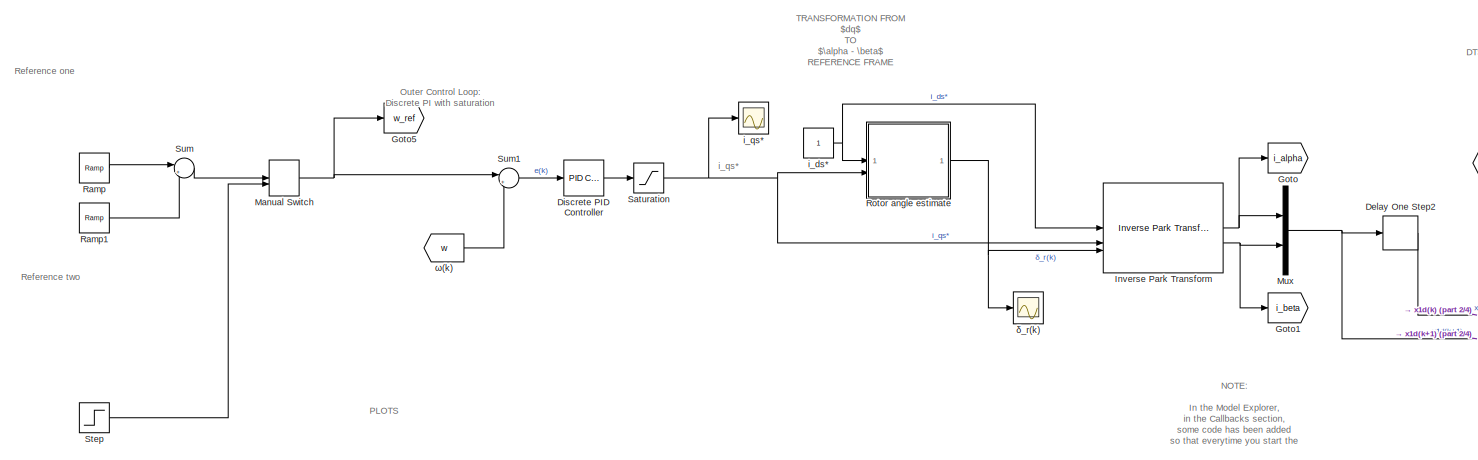
[diagram: root canvas - part 1/4, top left region]
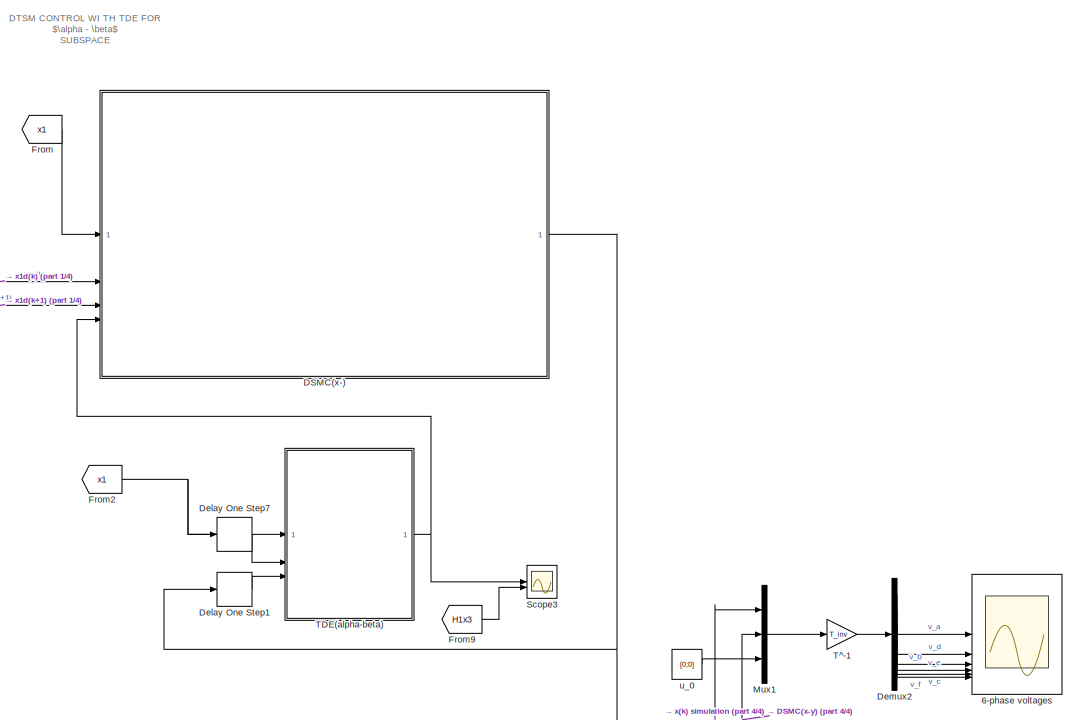
[diagram: root canvas - part 2/4, top right region]
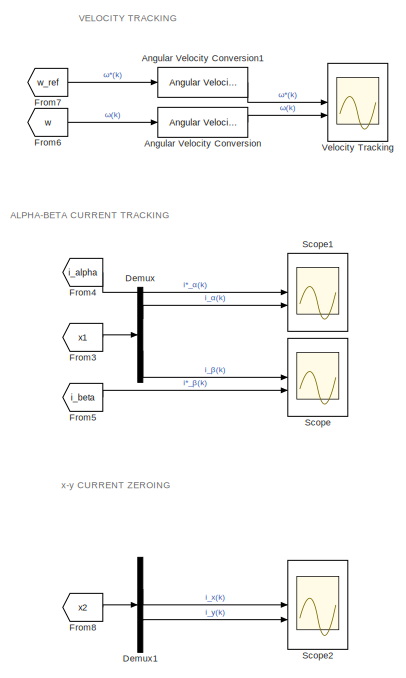
[diagram: root canvas - part 3/4, middle left region]
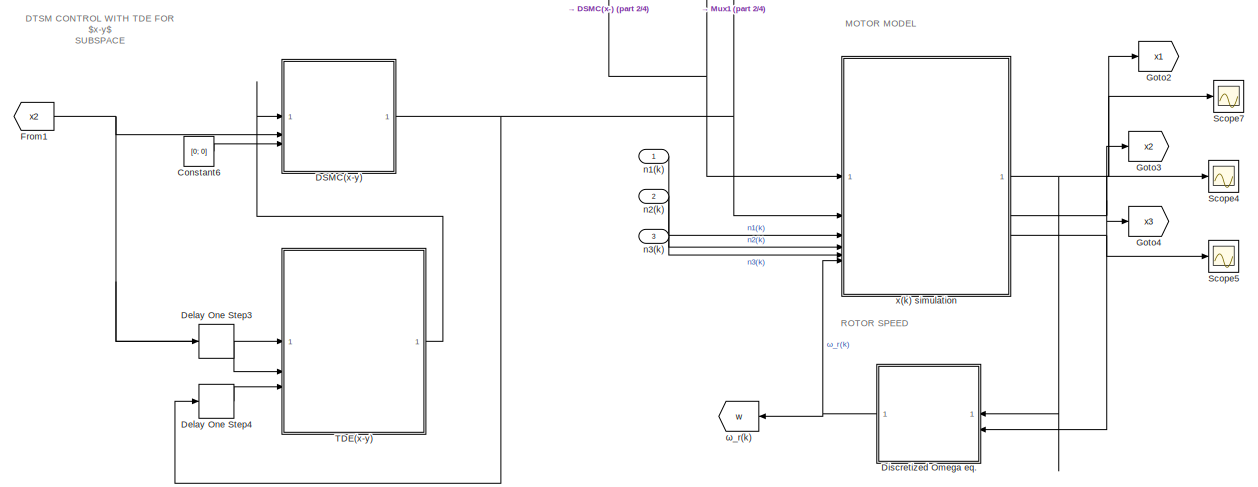
[diagram: root canvas - part 4/4, bottom right region]
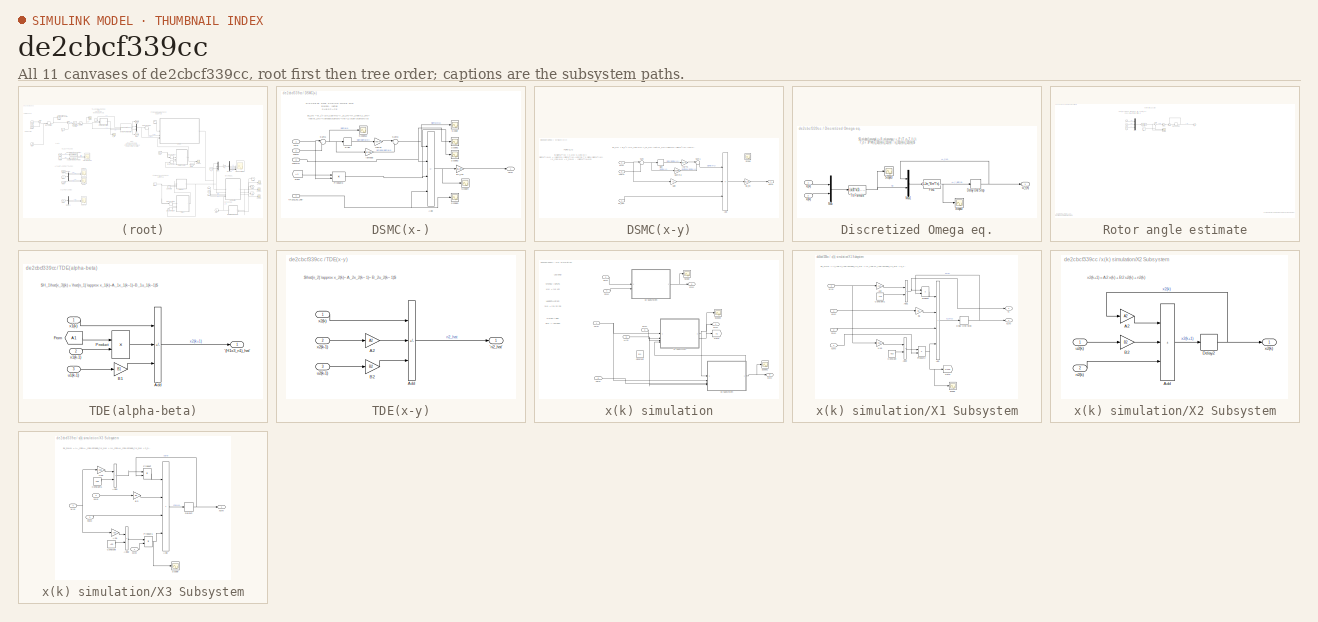
[diagram: thumbnail index - all 11 canvases of the model, root first then tree order]
MODEL slx_de2cbcf339cc
KIND model
CONFIG AbsTol = auto
CONFIG EnableMultiTasking = off
CONFIG FixedStep = Ts
CONFIG InitFcn = if ~ evalin('base', 'exist(''A2'', ''var'')')\n    load('all_parameters.mat');\nend
CONFIG MaxStep = 0.0001
CONFIG MinStep = auto
CONFIG PreLoadFcn = load('parameters.m')\nload('motor_parameters.m')
CONFIG RelTol = 1e-3
CONFIG SampleTimeConstraint = Unconstrained
CONFIG SolverName = FixedStepDiscrete
CONFIG StartTime = 0.0
CONFIG StopTime = 4
BLOCK [Scope] 6-phase voltages
  Floating = off
  NumInputPorts = 6
  ScopeSpecificationString = Simulink.scopes.TimeScopeBlockCfg('CurrentConfiguration', extmgr.ConfigurationSet(extmgr.Configuration('Core','General UI',true),extmgr.Configuration('Core','Source UI',true),extmgr.Configuration('Sources','WiredSimulink',true,'DataLoggingVariableName','ScopeData5'),extmgr.Configuration('Visuals','Time Domain',true,'SerializedDisplays',{struct('MinYLimReal','-877.56675','MaxYLimReal','1048.71297',...<+1757ch>
BLOCK [Reference] Angular Velocity Conversion  REF=aerolibconvert2/Angular Velocity
Conversion
  SourceBlock = aerolibconvert2/Angular Velocity\nConversion
  SourceType = Angular Velocity Conversion
BLOCK [Reference] Angular Velocity Conversion1  REF=aerolibconvert2/Angular Velocity
Conversion
  SourceBlock = aerolibconvert2/Angular Velocity\nConversion
  SourceType = Angular Velocity Conversion
BLOCK [Constant] Constant6
  Value = [0; 0]
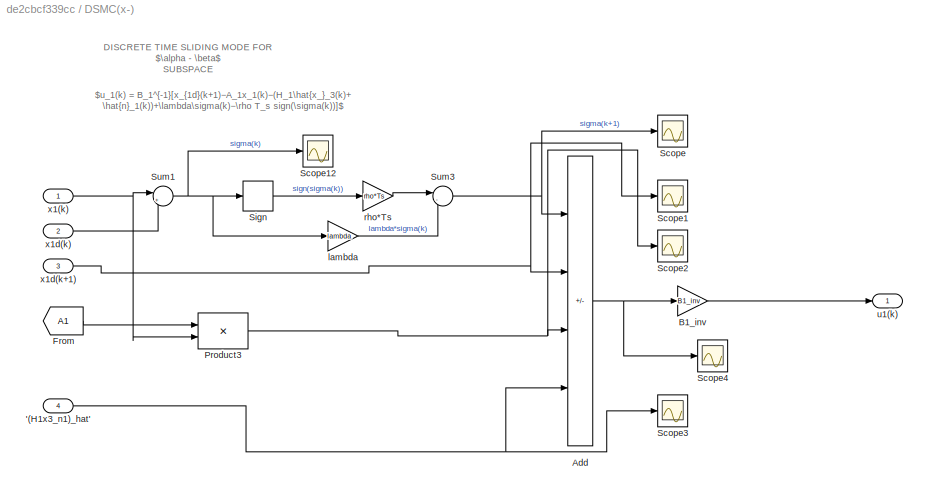
BLOCK [SubSystem] DSMC(x-)
BLOCK [Inport] DSMC(x-)/'(H1x3_n1)_hat' 
  Port = 4
BLOCK [Sum] DSMC(x-)/Add
  IconShape = rectangular
  Inputs = ++--
BLOCK [Gain] DSMC(x-)/B1_inv
  Gain = B1_inv
  Multiplication = Matrix(K*u)
BLOCK [From] DSMC(x-)/From
  GotoTag = A1
  TagVisibility = global
BLOCK [Product] DSMC(x-)/Product3
  Multiplication = Matrix(*)
BLOCK [Scope] DSMC(x-)/Scope
  Floating = off
  NumInputPorts = 1
  ScopeSpecificationString = Simulink.scopes.TimeScopeBlockCfg('CurrentConfiguration', extmgr.ConfigurationSet(extmgr.Configuration('Core','General UI',true),extmgr.Configuration('Core','Source UI',true),extmgr.Configuration('Sources','WiredSimulink',true,'DataLoggingVariableName','ScopeData5'),extmgr.Configuration('Visuals','Time Domain',true,'SerializedDisplays',{struct('MinYLimReal','-0.06517','MaxYLimReal','0.16699','YLab...<+1475ch>
BLOCK [Scope] DSMC(x-)/Scope1
  Floating = off
  NumInputPorts = 1
  ScopeSpecificationString = Simulink.scopes.TimeScopeBlockCfg('CurrentConfiguration', extmgr.ConfigurationSet(extmgr.Configuration('Core','General UI',true),extmgr.Configuration('Core','Source UI',true),extmgr.Configuration('Sources','WiredSimulink',true,'DataLoggingVariableName','ScopeData6'),extmgr.Configuration('Visuals','Time Domain',true,'SerializedDisplays',{struct('MinYLimReal','-6.37377','MaxYLimReal','6.37377','YLab...<+1471ch>
BLOCK [Scope] DSMC(x-)/Scope12
  Floating = off
  NumInputPorts = 1
  ScopeSpecificationString = Simulink.scopes.TimeScopeBlockCfg('CurrentConfiguration', extmgr.ConfigurationSet(extmgr.Configuration('Core','General UI',true),extmgr.Configuration('Core','Source UI',true),extmgr.Configuration('Sources','WiredSimulink',true,'DataLoggingVariableName','ScopeData6'),extmgr.Configuration('Visuals','Time Domain',true,'SerializedDisplays',{struct('MinYLimReal','-6.37377','MaxYLimReal','6.37377','YLab...<+1492ch>
BLOCK [Scope] DSMC(x-)/Scope2
  Floating = off
  NumInputPorts = 1
  ScopeSpecificationString = Simulink.scopes.TimeScopeBlockCfg('CurrentConfiguration', extmgr.ConfigurationSet(extmgr.Configuration('Core','General UI',true),extmgr.Configuration('Core','Source UI',true),extmgr.Configuration('Sources','WiredSimulink',true,'DataLoggingVariableName','ScopeData7'),extmgr.Configuration('Visuals','Time Domain',true,'SerializedDisplays',{struct('MinYLimReal','-6.30205','MaxYLimReal','6.30528','YLab...<+1471ch>
BLOCK [Scope] DSMC(x-)/Scope3
  Floating = off
  NumInputPorts = 1
  ScopeSpecificationString = Simulink.scopes.TimeScopeBlockCfg('CurrentConfiguration', extmgr.ConfigurationSet(extmgr.Configuration('Core','General UI',true),extmgr.Configuration('Core','Source UI',true),extmgr.Configuration('Sources','WiredSimulink',true,'DataLoggingVariableName','ScopeData8'),extmgr.Configuration('Visuals','Time Domain',true,'SerializedDisplays',{struct('MinYLimReal','-5.15879','MaxYLimReal','5.15879','YLab...<+1491ch>
BLOCK [Scope] DSMC(x-)/Scope4
  Floating = off
  NumInputPorts = 1
  ScopeSpecificationString = Simulink.scopes.TimeScopeBlockCfg('CurrentConfiguration', extmgr.ConfigurationSet(extmgr.Configuration('Core','General UI',true),extmgr.Configuration('Core','Source UI',true),extmgr.Configuration('Sources','WiredSimulink',true,'DataLoggingVariableName','ScopeData1'),extmgr.Configuration('Visuals','Time Domain',true,'SerializedDisplays',{struct('MinYLimReal','-2.35224','MaxYLimReal','7.4486','YLabe...<+1457ch>
BLOCK [Signum] DSMC(x-)/Sign
BLOCK [Sum] DSMC(x-)/Sum1
  Inputs = |+-
BLOCK [Sum] DSMC(x-)/Sum3
  Inputs = |-+
BLOCK [Gain] DSMC(x-)/lambda
  Gain = lambda
  Multiplication = Matrix(K*u)
BLOCK [Gain] DSMC(x-)/rho*Ts
  Gain = rho*Ts
  Multiplication = Matrix(K*u)
BLOCK [Outport] DSMC(x-)/u1(k)
BLOCK [Inport] DSMC(x-)/x1(k)
BLOCK [Inport] DSMC(x-)/x1d(k)
  Port = 2
BLOCK [Inport] DSMC(x-)/x1d(k+1)
  Port = 3
  PortDimensions = 2
BLOCK [SubSystem] DSMC(x-y)
BLOCK [Inport] DSMC(x-y)/'n2_hat' 
BLOCK [Sum] DSMC(x-y)/Add
  IconShape = rectangular
  Inputs = +--
BLOCK [Gain] DSMC(x-y)/B2_inv
  Gain = B2_inv
  Multiplication = Matrix(K*u)
BLOCK [Gain] DSMC(x-y)/Gain
  Gain = A2
  Multiplication = Matrix(K*u)
BLOCK [Gain] DSMC(x-y)/Gamma
  Gain = gamma
  Multiplication = Matrix(K*u)
BLOCK [Scope] DSMC(x-y)/Scope
  Floating = off
  NumInputPorts = 1
  ScopeSpecificationString = Simulink.scopes.TimeScopeBlockCfg('CurrentConfiguration', extmgr.ConfigurationSet(extmgr.Configuration('Core','General UI',true),extmgr.Configuration('Core','Source UI',true),extmgr.Configuration('Sources','WiredSimulink',true,'DataLoggingVariableName','ScopeData9'),extmgr.Configuration('Visuals','Time Domain',true),extmgr.Configuration('Tools','Plot Navigation',true),extmgr.Configuration('Tools',...<+40ch>
BLOCK [Signum] DSMC(x-y)/Sign
BLOCK [Sum] DSMC(x-y)/Sum
  Inputs = |+-
BLOCK [Sum] DSMC(x-y)/Sum1
  Inputs = |-+
BLOCK [Gain] DSMC(x-y)/rho*Ts
  Gain = rho*Ts
  Multiplication = Matrix(K*u)
BLOCK [Outport] DSMC(x-y)/u2(k)
BLOCK [Inport] DSMC(x-y)/x2(k)
  Port = 2
BLOCK [Inport] DSMC(x-y)/x2d(k)
  Port = 3
BLOCK [Delay] Delay One Step1
  DelayLength = 1
  InitialCondition = [0 0]
  InputPortMap = u0
  SampleTime = Ts
BLOCK [Delay] Delay One Step2
  DelayLength = 1
  InputPortMap = u0
BLOCK [Delay] Delay One Step3
  DelayLength = 1
  InitialCondition = [0 0]
  InputPortMap = u0
BLOCK [Delay] Delay One Step4
  DelayLength = 1
  InitialCondition = [0 0]
  InputPortMap = u0
BLOCK [Delay] Delay One Step7
  DelayLength = 1
  InitialCondition = [0 0]
  InputPortMap = u0
BLOCK [Demux] Demux
  Outputs = 2
BLOCK [Demux] Demux1
  Outputs = 2
BLOCK [Demux] Demux2
  Outputs = 6
BLOCK [Reference] Discrete PID Controller  REF=slpidlib/PID Controller
  LibrarySourceBlock = simulink/Discrete/Discrete PID Controller
  SourceBlock = slpidlib/PID Controller
  SourceType = PID 1dof
BLOCK [SubSystem] Discretized Omega eq.
BLOCK [Delay] Discretized Omega eq./Delay One Step
  DelayLength = 1
  InputPortMap = u0
BLOCK [Fcn] Discretized Omega eq./Fcn1
  Expr = (1-Jm_*Bm*Ts)*u(1) + Ts*Jm_*P*(u(2)-Tl)
BLOCK [Mux] Discretized Omega eq./Mux
  DisplayOption = bar
  Inputs = 2
BLOCK [Mux] Discretized Omega eq./Mux1
  DisplayOption = bar
  Inputs = 2
BLOCK [Scope] Discretized Omega eq./Scope2
  Floating = off
  NumInputPorts = 1
  ScopeSpecificationString = Simulink.scopes.TimeScopeBlockCfg('CurrentConfiguration', extmgr.ConfigurationSet(extmgr.Configuration('Core','General UI',true),extmgr.Configuration('Core','Source UI',true),extmgr.Configuration('Sources','WiredSimulink',true,'DataLoggingVariableName','ScopeData2'),extmgr.Configuration('Visuals','Time Domain',true,'SerializedDisplays',{struct('MinYLimReal','-5635.60374','MaxYLimReal','625.62071',...<+1613ch>
BLOCK [Scope] Discretized Omega eq./Scope3
  Floating = off
  NumInputPorts = 1
  ScopeSpecificationString = Simulink.scopes.TimeScopeBlockCfg('CurrentConfiguration', extmgr.ConfigurationSet(extmgr.Configuration('Core','General UI',true),extmgr.Configuration('Core','Source UI',true),extmgr.Configuration('Sources','WiredSimulink',true,'DataLoggingVariableName','ScopeData3'),extmgr.Configuration('Visuals','Time Domain',true,'SerializedDisplays',{struct('MinYLimReal','-5.9568','MaxYLimReal','53.61123','YLab...<+1541ch>
BLOCK [Fcn] Discretized Omega eq./Te Formula
  Expr = (u(4)*u(1) - u(3)*u(2))*3*P*M_ind
BLOCK [Inport] Discretized Omega eq./x1(k)
  PortDimensions = 2
BLOCK [Inport] Discretized Omega eq./x3(k)
  Port = 2
  PortDimensions = 2
BLOCK [Outport] Discretized Omega eq./ω_r(k)
  PortDimensions = 1
BLOCK [From] From
  GotoTag = x1
  TagVisibility = global
BLOCK [From] From1
  GotoTag = x2
  TagVisibility = global
BLOCK [From] From2
  GotoTag = x1
  TagVisibility = global
BLOCK [From] From3
  GotoTag = x1
  TagVisibility = global
BLOCK [From] From4
  GotoTag = i_alpha
BLOCK [From] From5
  GotoTag = i_beta
BLOCK [From] From6
  GotoTag = w
  TagVisibility = global
BLOCK [From] From7
  GotoTag = w_ref
BLOCK [From] From8
  GotoTag = x2
  TagVisibility = global
BLOCK [From] From9
  GotoTag = H1x3
  TagVisibility = global
BLOCK [Goto] Goto
  GotoTag = i_alpha
BLOCK [Goto] Goto1
  GotoTag = i_beta
BLOCK [Goto] Goto2
  GotoTag = x1
  TagVisibility = global
BLOCK [Goto] Goto3
  GotoTag = x2
  TagVisibility = global
BLOCK [Goto] Goto4
  GotoTag = x3
  TagVisibility = global
BLOCK [Goto] Goto5
  GotoTag = w_ref
BLOCK [Reference] Inverse Park Transform  REF=mcbcontrolslib/Inverse Park Transform
  LibrarySourceBlock = mcbhdllib/Controls/Math Transforms/Inverse Park Transform
  SourceBlock = mcbcontrolslib/Inverse Park Transform
  SourceType = Inverse Park Transform
BLOCK [ManualSwitch] Manual Switch
BLOCK [Mux] Mux
  DisplayOption = bar
  Inputs = 2
BLOCK [Mux] Mux1
  DisplayOption = bar
  Inputs = 3
BLOCK [Reference] Ramp  REF=simulink/Sources/Ramp
  SourceBlock = simulink/Sources/Ramp
  SourceType = Ramp
BLOCK [Reference] Ramp1  REF=simulink/Sources/Ramp
  SourceBlock = simulink/Sources/Ramp
  SourceType = Ramp
BLOCK [SubSystem] Rotor angle estimate
BLOCK [Delay] Rotor angle estimate/Delay One Step
  DelayLength = 1
  InputPortMap = u0
BLOCK [Gain] Rotor angle estimate/Gain1
  Gain = Ts
BLOCK [Mux] Rotor angle estimate/Mux
  DisplayOption = bar
  Inputs = 3
BLOCK [Scope] Rotor angle estimate/Scope
  Floating = off
  NumInputPorts = 2
  ScopeSpecificationString = Simulink.scopes.TimeScopeBlockCfg('CurrentConfiguration', extmgr.ConfigurationSet(extmgr.Configuration('Core','General UI',true),extmgr.Configuration('Core','Source UI',true),extmgr.Configuration('Sources','WiredSimulink',true,'DataLoggingVariableName','ScopeData1'),extmgr.Configuration('Visuals','Time Domain',true,'SerializedDisplays',{struct('MinYLimReal','-19.69479','MaxYLimReal','176.63098','Y...<+1549ch>
BLOCK [Sum] Rotor angle estimate/Sum
  Inputs = |++
BLOCK [Sum] Rotor angle estimate/Sum1
  Inputs = ++|
BLOCK [Inport] Rotor angle estimate/i_ds*
BLOCK [Inport] Rotor angle estimate/i_qs*
  Port = 2
BLOCK [Outport] Rotor angle estimate/δ_r(k)
BLOCK [From] Rotor angle estimate/ω(k)
  GotoTag = w
  TagVisibility = global
BLOCK [Fcn] Rotor angle estimate/ω_sl(k)
  Expr = (1/u(1))*u(2)/u(3)
BLOCK [Constant] Rotor angle estimate/𝜏_r
  Value = Lr/Rr
BLOCK [Saturate] Saturation
  LowerLimit = -5
  UpperLimit = 5
BLOCK [Scope] Scope
  Floating = off
  NumInputPorts = 2
  ScopeSpecificationString = Simulink.scopes.TimeScopeBlockCfg('CurrentConfiguration', extmgr.ConfigurationSet(extmgr.Configuration('Core','General UI',true),extmgr.Configuration('Core','Source UI',true),extmgr.Configuration('Sources','WiredSimulink',true,'DataLoggingVariableName','ScopeData1'),extmgr.Configuration('Visuals','Time Domain',true,'SerializedDisplays',{struct('MinYLimReal','-4.70903','MaxYLimReal','4.67162','YLab...<+1608ch>
BLOCK [Scope] Scope1
  Floating = off
  NumInputPorts = 2
  ScopeSpecificationString = Simulink.scopes.TimeScopeBlockCfg('CurrentConfiguration', extmgr.ConfigurationSet(extmgr.Configuration('Core','General UI',true),extmgr.Configuration('Core','Source UI',true),extmgr.Configuration('Sources','WiredSimulink',true,'DataLoggingVariableName','ScopeData2'),extmgr.Configuration('Visuals','Time Domain',true,'SerializedDisplays',{struct('MinYLimReal','-6.37714','MaxYLimReal','6.37736','YLab...<+1612ch>
BLOCK [Scope] Scope2
  Floating = off
  NumInputPorts = 2
  ScopeSpecificationString = Simulink.scopes.TimeScopeBlockCfg('CurrentConfiguration', extmgr.ConfigurationSet(extmgr.Configuration('Core','General UI',true),extmgr.Configuration('Core','Source UI',true),extmgr.Configuration('Sources','WiredSimulink',true,'DataLoggingVariableName','ScopeData4'),extmgr.Configuration('Visuals','Time Domain',true,'SerializedDisplays',{struct('MinYLimReal','-1.00000','MaxYLimReal','1.00000','YLab...<+1555ch>
BLOCK [Scope] Scope3
  Floating = off
  NumInputPorts = 2
  ScopeSpecificationString = Simulink.scopes.TimeScopeBlockCfg('CurrentConfiguration', extmgr.ConfigurationSet(extmgr.Configuration('Core','General UI',true),extmgr.Configuration('Core','Source UI',true),extmgr.Configuration('Sources','WiredSimulink',true,'DataLoggingVariableName','ScopeData2'),extmgr.Configuration('Visuals','Time Domain',true,'SerializedDisplays',{struct('MinYLimReal','-5.08443','MaxYLimReal','5.08505','YLab...<+1528ch>
BLOCK [Scope] Scope4
  Floating = off
  NumInputPorts = 1
  ScopeSpecificationString = Simulink.scopes.TimeScopeBlockCfg('CurrentConfiguration', extmgr.ConfigurationSet(extmgr.Configuration('Core','General UI',true),extmgr.Configuration('Core','Source UI',true),extmgr.Configuration('Sources','WiredSimulink',true,'DataLoggingVariableName','ScopeData2'),extmgr.Configuration('Visuals','Time Domain',true,'SerializedDisplays',{struct('MinYLimReal','-0.18657','MaxYLimReal','0.18657','YLab...<+1497ch>
BLOCK [Scope] Scope5
  Floating = off
  NumInputPorts = 1
  ScopeSpecificationString = Simulink.scopes.TimeScopeBlockCfg('CurrentConfiguration', extmgr.ConfigurationSet(extmgr.Configuration('Core','General UI',true),extmgr.Configuration('Core','Source UI',true),extmgr.Configuration('Sources','WiredSimulink',true,'DataLoggingVariableName','ScopeData3'),extmgr.Configuration('Visuals','Time Domain',true,'SerializedDisplays',{struct('MinYLimReal','-35.45121','MaxYLimReal','41.59048','YL...<+1503ch>
BLOCK [Scope] Scope7
  Floating = off
  NumInputPorts = 1
  ScopeSpecificationString = Simulink.scopes.TimeScopeBlockCfg('CurrentConfiguration', extmgr.ConfigurationSet(extmgr.Configuration('Core','General UI',true),extmgr.Configuration('Core','Source UI',true),extmgr.Configuration('Sources','WiredSimulink',true,'DataLoggingVariableName','ScopeData5'),extmgr.Configuration('Visuals','Time Domain',true,'SerializedDisplays',{struct('MinYLimReal','-0.12526','MaxYLimReal','1.12732','YLab...<+1543ch>
BLOCK [Step] Step
  After = -52
  Before = 52
  SampleTime = Ts
  Time = 2
BLOCK [Sum] Sum
  Inputs = |++
BLOCK [Sum] Sum1
  Inputs = |+-
BLOCK [SubSystem] TDE(alpha-beta)
BLOCK [Outport] TDE(alpha-beta)/'(H1x3_n1)_hat' 
BLOCK [Sum] TDE(alpha-beta)/Add
  IconShape = rectangular
  Inputs = +--
BLOCK [Gain] TDE(alpha-beta)/B1
  Gain = B1
  Multiplication = Matrix(K*u)
BLOCK [From] TDE(alpha-beta)/From
  GotoTag = A1
  TagVisibility = global
BLOCK [Product] TDE(alpha-beta)/Product
  Multiplication = Matrix(*)
BLOCK [Inport] TDE(alpha-beta)/u1(k-1)
  Port = 3
  PortDimensions = 2
BLOCK [Inport] TDE(alpha-beta)/x1(k)
BLOCK [Inport] TDE(alpha-beta)/x1(k-1)
  Port = 2
  PortDimensions = 2
BLOCK [SubSystem] TDE(x-y)
BLOCK [Outport] TDE(x-y)/'n2_hat' 
BLOCK [Gain] TDE(x-y)/A2
  Gain = A2
  Multiplication = Matrix(K*u)
BLOCK [Sum] TDE(x-y)/Add
  IconShape = rectangular
  Inputs = +--
BLOCK [Gain] TDE(x-y)/B2
  Gain = B2
  Multiplication = Matrix(K*u)
BLOCK [Inport] TDE(x-y)/u2(k-1)
  Port = 3
BLOCK [Inport] TDE(x-y)/x2(k)
BLOCK [Inport] TDE(x-y)/x2(k-1)
  Port = 2
BLOCK [Gain] T^-1
  Gain = T_inv
  Multiplication = Matrix(K*u)
BLOCK [Scope] Velocity Tracking
  Floating = off
  NumInputPorts = 2
  ScopeSpecificationString = Simulink.scopes.TimeScopeBlockCfg('CurrentConfiguration', extmgr.ConfigurationSet(extmgr.Configuration('Core','General UI',true),extmgr.Configuration('Core','Source UI',true),extmgr.Configuration('Sources','WiredSimulink',true,'DataLoggingVariableName','ScopeData3'),extmgr.Configuration('Visuals','Time Domain',true,'SerializedDisplays',{struct('MinYLimReal','-188.14923','MaxYLimReal','1686.72721',...<+1734ch>
BLOCK [Constant] i_ds*
BLOCK [Scope] i_qs*
  Floating = off
  NumInputPorts = 1
  ScopeSpecificationString = Simulink.scopes.TimeScopeBlockCfg('CurrentConfiguration', extmgr.ConfigurationSet(extmgr.Configuration('Core','General UI',true),extmgr.Configuration('Core','Source UI',true),extmgr.Configuration('Sources','WiredSimulink',true,'DataLoggingVariableName','ScopeData12'),extmgr.Configuration('Visuals','Time Domain',true,'SerializedDisplays',{struct('MinYLimReal','-0.28725','MaxYLimReal','2.58525','YLa...<+1454ch>
BLOCK [Inport] n1(k)
BLOCK [Inport] n2(k)
  Port = 2
BLOCK [Inport] n3(k)
  Port = 3
BLOCK [Constant] u_0
  Value = [0;0]
BLOCK [SubSystem] x(k) simulation
BLOCK [Constant] x(k) simulation/Constant
  Value = [1 1]
BLOCK [Goto] x(k) simulation/Goto
  GotoTag = A1
  TagVisibility = global
BLOCK [Scope] x(k) simulation/Scope
  Floating = off
  NumInputPorts = 1
  ScopeSpecificationString = Simulink.scopes.TimeScopeBlockCfg('CurrentConfiguration', extmgr.ConfigurationSet(extmgr.Configuration('Core','General UI',true),extmgr.Configuration('Core','Source UI',true),extmgr.Configuration('Sources','WiredSimulink',true,'DataLoggingVariableName','ScopeData3'),extmgr.Configuration('Visuals','Time Domain',true,'SerializedDisplays',{struct('MinYLimReal','-1.00000','MaxYLimReal','1.00000','YLab...<+1525ch>
BLOCK [Scope] x(k) simulation/Scope1
  Floating = off
  NumInputPorts = 1
  ScopeSpecificationString = Simulink.scopes.TimeScopeBlockCfg('CurrentConfiguration', extmgr.ConfigurationSet(extmgr.Configuration('Core','General UI',true),extmgr.Configuration('Core','Source UI',true),extmgr.Configuration('Sources','WiredSimulink',true,'DataLoggingVariableName','ScopeData7'),extmgr.Configuration('Visuals','Time Domain',true,'SerializedDisplays',{struct('MinYLimReal','-35.45121','MaxYLimReal','41.59048','YL...<+1514ch>
BLOCK [Scope] x(k) simulation/Scope2
  Floating = off
  NumInputPorts = 1
  ScopeSpecificationString = Simulink.scopes.TimeScopeBlockCfg('CurrentConfiguration', extmgr.ConfigurationSet(extmgr.Configuration('Core','General UI',true),extmgr.Configuration('Core','Source UI',true),extmgr.Configuration('Sources','WiredSimulink',true,'DataLoggingVariableName','ScopeData8'),extmgr.Configuration('Visuals','Time Domain',true,'SerializedDisplays',{struct('MinYLimReal','-6.37635','MaxYLimReal','6.37549','YLab...<+1491ch>
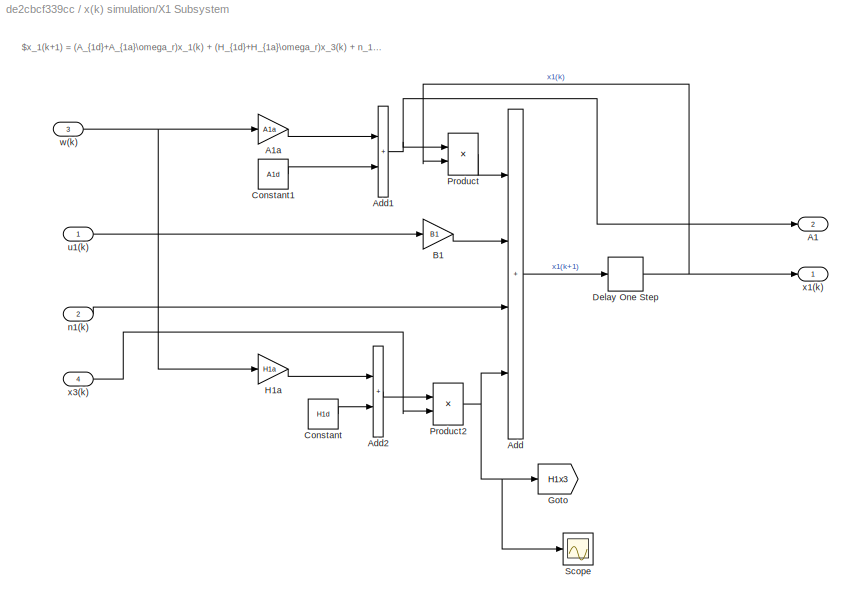
BLOCK [SubSystem] x(k) simulation/X1 Subsystem
BLOCK [Outport] x(k) simulation/X1 Subsystem/A1
  Port = 2
  PortDimensions = [2,2]
BLOCK [Gain] x(k) simulation/X1 Subsystem/A1a
  Gain = A1a
BLOCK [Sum] x(k) simulation/X1 Subsystem/Add
  IconShape = rectangular
  Inputs = ++++
BLOCK [Sum] x(k) simulation/X1 Subsystem/Add1
  IconShape = rectangular
BLOCK [Sum] x(k) simulation/X1 Subsystem/Add2
  IconShape = rectangular
BLOCK [Gain] x(k) simulation/X1 Subsystem/B1
  Gain = B1
  Multiplication = Matrix(K*u)
BLOCK [Constant] x(k) simulation/X1 Subsystem/Constant
  Value = H1d
BLOCK [Constant] x(k) simulation/X1 Subsystem/Constant1
  Value = A1d
BLOCK [Delay] x(k) simulation/X1 Subsystem/Delay One Step
  DelayLength = 1
  InitialCondition = [0 0]
  InputPortMap = u0
BLOCK [Goto] x(k) simulation/X1 Subsystem/Goto
  GotoTag = H1x3
  TagVisibility = global
BLOCK [Gain] x(k) simulation/X1 Subsystem/H1a
  Gain = H1a
BLOCK [Product] x(k) simulation/X1 Subsystem/Product
  Multiplication = Matrix(*)
BLOCK [Product] x(k) simulation/X1 Subsystem/Product2
  Multiplication = Matrix(*)
BLOCK [Scope] x(k) simulation/X1 Subsystem/Scope
  Floating = off
  NumInputPorts = 1
  ScopeSpecificationString = Simulink.scopes.TimeScopeBlockCfg('CurrentConfiguration', extmgr.ConfigurationSet(extmgr.Configuration('Core','General UI',true),extmgr.Configuration('Core','Source UI',true),extmgr.Configuration('Sources','WiredSimulink',true,'DataLoggingVariableName','ScopeData9'),extmgr.Configuration('Visuals','Time Domain',true,'SerializedDisplays',{struct('MinYLimReal','-2.44601','MaxYLimReal','2.23658','YLab...<+1471ch>
BLOCK [Inport] x(k) simulation/X1 Subsystem/n1(k)
  Port = 2
BLOCK [Inport] x(k) simulation/X1 Subsystem/u1(k)
BLOCK [Inport] x(k) simulation/X1 Subsystem/w(k)
  Port = 3
BLOCK [Outport] x(k) simulation/X1 Subsystem/x1(k)
BLOCK [Inport] x(k) simulation/X1 Subsystem/x3(k)
  Port = 4
  PortDimensions = 2
BLOCK [SubSystem] x(k) simulation/X2 Subsystem
BLOCK [Gain] x(k) simulation/X2 Subsystem/A2
  Gain = A2
  Multiplication = Matrix(K*u)
BLOCK [Sum] x(k) simulation/X2 Subsystem/Add
  IconShape = rectangular
  Inputs = +++
BLOCK [Gain] x(k) simulation/X2 Subsystem/B2
  Gain = B2
  Multiplication = Matrix(K*u)
BLOCK [Delay] x(k) simulation/X2 Subsystem/Delay2
  DelayLength = 1
  InitialCondition = [0; 0]
  InputPortMap = u0
BLOCK [Inport] x(k) simulation/X2 Subsystem/n2(k)
  Port = 2
BLOCK [Inport] x(k) simulation/X2 Subsystem/u2(k)
BLOCK [Outport] x(k) simulation/X2 Subsystem/x2(k)
BLOCK [SubSystem] x(k) simulation/X3 Subsystem
BLOCK [Gain] x(k) simulation/X3 Subsystem/A3a
  Gain = A3a
BLOCK [Sum] x(k) simulation/X3 Subsystem/Add
  IconShape = rectangular
  Inputs = ++++
BLOCK [Sum] x(k) simulation/X3 Subsystem/Add1
  IconShape = rectangular
BLOCK [Sum] x(k) simulation/X3 Subsystem/Add2
  IconShape = rectangular
BLOCK [Gain] x(k) simulation/X3 Subsystem/B3
  Gain = B3
  Multiplication = Matrix(K*u)
BLOCK [Constant] x(k) simulation/X3 Subsystem/Constant
  Value = A3d
BLOCK [Constant] x(k) simulation/X3 Subsystem/Constant1
  Value = H2d
BLOCK [Delay] x(k) simulation/X3 Subsystem/Delay2
  DelayLength = 1
  InitialCondition = [0 0]
  InputPortMap = u0
BLOCK [Gain] x(k) simulation/X3 Subsystem/H2a
  Gain = H2a
BLOCK [Product] x(k) simulation/X3 Subsystem/Product
  Multiplication = Matrix(*)
BLOCK [Product] x(k) simulation/X3 Subsystem/Product1
  Multiplication = Matrix(*)
BLOCK [Scope] x(k) simulation/X3 Subsystem/Scope
  Floating = off
  NumInputPorts = 1
  ScopeSpecificationString = Simulink.scopes.TimeScopeBlockCfg('CurrentConfiguration', extmgr.ConfigurationSet(extmgr.Configuration('Core','General UI',true),extmgr.Configuration('Core','Source UI',true),extmgr.Configuration('Sources','WiredSimulink',true,'DataLoggingVariableName','ScopeData10'),extmgr.Configuration('Visuals','Time Domain',true,'SerializedDisplays',{struct('MinYLimReal','-0.2501','MaxYLimReal','0.31272','YLab...<+1470ch>
BLOCK [Inport] x(k) simulation/X3 Subsystem/n3(k)
  Port = 3
BLOCK [Inport] x(k) simulation/X3 Subsystem/u1(k)
  Port = 2
BLOCK [Inport] x(k) simulation/X3 Subsystem/w(k)
  Port = 4
BLOCK [Inport] x(k) simulation/X3 Subsystem/x1(k)
BLOCK [Outport] x(k) simulation/X3 Subsystem/x3(k)
BLOCK [Inport] x(k) simulation/n1(k)
  Port = 3
  PortDimensions = 2
BLOCK [Inport] x(k) simulation/n2(k)
  Port = 4
  PortDimensions = 2
BLOCK [Inport] x(k) simulation/n3(k)
  Port = 5
  PortDimensions = 2
BLOCK [Inport] x(k) simulation/u1(k)
BLOCK [Inport] x(k) simulation/u2(k)
  Port = 2
BLOCK [Outport] x(k) simulation/x1(k)
BLOCK [Outport] x(k) simulation/x2(k)
  Port = 2
BLOCK [Outport] x(k) simulation/x3(k)
  Port = 3
BLOCK [Inport] x(k) simulation/ω(k)
  Port = 6
BLOCK [Scope] δ_r(k)
  Floating = off
  NumInputPorts = 1
  ScopeSpecificationString = Simulink.scopes.TimeScopeBlockCfg('CurrentConfiguration', extmgr.ConfigurationSet(extmgr.Configuration('Core','General UI',true),extmgr.Configuration('Core','Source UI',true),extmgr.Configuration('Sources','WiredSimulink',true,'DataLoggingVariableName','ScopeData11'),extmgr.Configuration('Visuals','Time Domain',true,'SerializedDisplays',{struct('MinYLimReal','-15.12977','MaxYLimReal','136.16789','...<+1519ch>
BLOCK [From] ω(k)
  GotoTag = w
  TagVisibility = global
BLOCK [Goto] ω_r(k)
  GotoTag = w
  TagVisibility = global
ANNOTATION (root): ALPHA-BETA CURRENT TRACKING
ANNOTATION (root): MOTOR MODEL
ANNOTATION (root): Outer Control Loop: Discrete PI with saturation
ANNOTATION (root): ROTOR SPEED
ANNOTATION (root): Reference one
ANNOTATION (root): Reference two
ANNOTATION (root): VELOCITY TRACKING
ANNOTATION (root): x-y CURRENT ZEROING
ANNOTATION (root): PLOTS
ANNOTATION (root): DTSM CONTROL WI TH TDE FOR $\alpha - \beta$ SUBSPACE
ANNOTATION (root): DTSM CONTROL WITH TDE FOR $x-y$ SUBSPACE
ANNOTATION (root): TRANSFORMATION FROM $dq$ TO $\alpha - \beta$ REFERENCE FRAME
ANNOTATION (root): NOTE: In the Model Explorer, in the Callbacks section, some code has been added so that everytime you start the simulation, the parameters get loaded in the workspace from the .mat files, but only if they're not already in the Workspace.
ANNOTATION (root): i_qs*
ANNOTATION DSMC(x-): $u_1(k) = B_1^{-1}[x_{1d}(k+1)−A_1x_1(k)−(H_1\hat{x_}_3(k)+ \hat{n}_1(k))+\lambda\sigma(k)−\rho T_s sign(\sigma(k))]$
ANNOTATION DSMC(x-): DISCRETE TIME SLIDING MODE FOR $\alpha - \beta$ SUBSPACE
ANNOTATION DSMC(x-y): FORMULAS
ANNOTATION DSMC(x-y): $\sigma^*(k) = x_2(k)-x_{2d}(k)\\ \sigma^*(k+1) = \Gamma \sigma^*(k)−\varrho T_s sign(\sigma^*(k)) \\x_{2d}(k+1) = x_2(k+1) - \sigma^*(k+1)$
ANNOTATION DSMC(x-y): $u_2(k) = B_2^{-1}[x_{2d}(k+1)−A_2x_2(k)−\hat{n}_2(k)+\Gamma \sigma^*(k)−\varrho T_s sign(\sigma^*(k))]$
ANNOTATION Discretized Omega eq.: $J_m\dot{\omega}_r+B_m\omega_r = P (T_e−T_l) \\ T_e = 3PM(x_{32}(k)x_{11}(k) - x_{31}(k)x_{12}(k))$
ANNOTATION Rotor angle estimate: Rotor Position Calculation
ANNOTATION Rotor angle estimate: $\delta_r(k+1) = (\omega_{sl}(k)+\omega_r(k))T_s + \delta_r(k+1) \\ \omega_{sl}(k) = (i_{qs}^*(k)/i_{ds}^*(k))/\tau_r$
ANNOTATION Rotor angle estimate: In our problem the transformation is from qd to alfa-beta, neither qd/QD or QD/abc
ANNOTATION Rotor angle estimate: to obtain lamba_r e lamba_r_hat but here we don't have the values of q-d currents and of stator voltages in q-d
ANNOTATION TDE(alpha-beta): $H_1\hat{x_3}(k) + \hat{n_1} \approx x_1(k)−A_1x_1(k−1)−B_1u_1(k−1)$
ANNOTATION TDE(x-y): $\hat{n_2} \approx x_2(k)−A_2x_2(k−1)−B_2u_2(k−1)$
ANNOTATION x(k) simulation: LEGEND
ANNOTATION x(k) simulation: OMEGA REF. w(k) = "omega"
ANNOTATION x(k) simulation: SYSTEM INPUTS u(k) = [u1 u2]
ANNOTATION x(k) simulation: UNCERTAINTIES n(k) = [n1 n2 n3]
ANNOTATION x(k) simulation/X1 Subsystem: $x_1(k+1) = (A_{1d}+A_{1a}\omega_r)x_1(k) + (H_{1d}+H_{1a}\omega_r)x_3(k) + n_1(k)$
ANNOTATION x(k) simulation/X2 Subsystem: x 2 (k+1) = A 2 x(k) + B 2 u 2 (k) + n 2 (k)
ANNOTATION x(k) simulation/X3 Subsystem: $x_3(k+1) = (A_{3d}+A_{3a}\omega_r)x_1(k) + (H_{2d}+H_{2a}\omega_r)x_3(k) + n_3(k)$
LINE Angular Velocity Conversion1:1 -> Velocity Tracking:1
LINE Angular Velocity Conversion:1 -> Velocity Tracking:2
LINE Constant6:1 -> DSMC(x-y):3
NET DSMC(x-)/'(H1x3_n1)_hat' :1 -> DSMC(x-)/Add:4, DSMC(x-)/Scope3:1
NET DSMC(x-)/Add:1 -> DSMC(x-)/B1_inv:1, DSMC(x-)/Scope4:1
LINE DSMC(x-)/B1_inv:1 -> DSMC(x-)/u1(k):1
LINE DSMC(x-)/From:1 -> DSMC(x-)/Product3:1
NET DSMC(x-)/Product3:1 -> DSMC(x-)/Add:3, DSMC(x-)/Scope2:1
LINE DSMC(x-)/Sign:1 -> DSMC(x-)/rho*Ts:1
NET DSMC(x-)/Sum1:1 -> DSMC(x-)/Scope12:1, DSMC(x-)/Sign:1, DSMC(x-)/lambda:1
NET DSMC(x-)/Sum3:1 -> DSMC(x-)/Add:1, DSMC(x-)/Scope:1
LINE DSMC(x-)/lambda:1 -> DSMC(x-)/Sum3:2
LINE DSMC(x-)/rho*Ts:1 -> DSMC(x-)/Sum3:1
NET DSMC(x-)/x1(k):1 -> DSMC(x-)/Product3:2, DSMC(x-)/Sum1:1
LINE DSMC(x-)/x1d(k):1 -> DSMC(x-)/Sum1:2
NET DSMC(x-)/x1d(k+1):1 -> DSMC(x-)/Add:2, DSMC(x-)/Scope1:1
NET DSMC(x-):1 -> Delay One Step1:1, Mux1:1, x(k) simulation:1
LINE DSMC(x-y)/'n2_hat' :1 -> DSMC(x-y)/Add:3
LINE DSMC(x-y)/Add:1 -> DSMC(x-y)/B2_inv:1
LINE DSMC(x-y)/B2_inv:1 -> DSMC(x-y)/u2(k):1
LINE DSMC(x-y)/Gain:1 -> DSMC(x-y)/Add:2
LINE DSMC(x-y)/Gamma:1 -> DSMC(x-y)/Sum1:2
LINE DSMC(x-y)/Sign:1 -> DSMC(x-y)/rho*Ts:1
LINE DSMC(x-y)/Sum1:1 -> DSMC(x-y)/Add:1
NET DSMC(x-y)/Sum:1 -> DSMC(x-y)/Gamma:1, DSMC(x-y)/Sign:1
LINE DSMC(x-y)/rho*Ts:1 -> DSMC(x-y)/Sum1:1
NET DSMC(x-y)/x2(k):1 -> DSMC(x-y)/Gain:1, DSMC(x-y)/Sum:1
LINE DSMC(x-y)/x2d(k):1 -> DSMC(x-y)/Sum:2
NET DSMC(x-y):1 -> Delay One Step4:1, Mux1:2, x(k) simulation:2
LINE Delay One Step1:1 -> TDE(alpha-beta):3
LINE Delay One Step2:1 -> DSMC(x-):2
LINE Delay One Step3:1 -> TDE(x-y):2
LINE Delay One Step4:1 -> TDE(x-y):3
LINE Delay One Step7:1 -> TDE(alpha-beta):2
LINE Demux1:1 -> Scope2:1
LINE Demux1:2 -> Scope2:2
LINE Demux2:1 -> 6-phase voltages:1
LINE Demux2:2 -> 6-phase voltages:2
LINE Demux2:3 -> 6-phase voltages:3
LINE Demux2:4 -> 6-phase voltages:4
LINE Demux2:5 -> 6-phase voltages:5
LINE Demux2:6 -> 6-phase voltages:6
LINE Demux:1 -> Scope1:2
LINE Demux:2 -> Scope:1
LINE Discrete PID Controller:1 -> Saturation:1
NET Discretized Omega eq./Delay One Step:1 -> Discretized Omega eq./Mux1:1, Discretized Omega eq./ω_r(k):1
NET Discretized Omega eq./Fcn1:1 -> Discretized Omega eq./Delay One Step:1, Discretized Omega eq./Scope2:1
LINE Discretized Omega eq./Mux1:1 -> Discretized Omega eq./Fcn1:1
LINE Discretized Omega eq./Mux:1 -> Discretized Omega eq./Te Formula:1
NET Discretized Omega eq./Te Formula:1 -> Discretized Omega eq./Mux1:2, Discretized Omega eq./Scope3:1
LINE Discretized Omega eq./x1(k):1 -> Discretized Omega eq./Mux:1
LINE Discretized Omega eq./x3(k):1 -> Discretized Omega eq./Mux:2
NET Discretized Omega eq.:1 -> x(k) simulation:6, ω_r(k):1
NET From1:1 -> DSMC(x-y):2, Delay One Step3:1, TDE(x-y):1
NET From2:1 -> Delay One Step7:1, TDE(alpha-beta):1
LINE From3:1 -> Demux:1
LINE From4:1 -> Scope1:1
LINE From5:1 -> Scope:2
LINE From6:1 -> Angular Velocity Conversion:1
LINE From7:1 -> Angular Velocity Conversion1:1
LINE From8:1 -> Demux1:1
LINE From9:1 -> Scope3:2
LINE From:1 -> DSMC(x-):1
NET Inverse Park Transform:1 -> Goto:1, Mux:1
NET Inverse Park Transform:2 -> Goto1:1, Mux:2
NET Manual Switch:1 -> Goto5:1, Sum1:1
LINE Mux1:1 -> T^-1:1
NET Mux:1 -> DSMC(x-):3, Delay One Step2:1
LINE Ramp1:1 -> Sum:2
LINE Ramp:1 -> Sum:1
NET Rotor angle estimate/Delay One Step:1 -> Rotor angle estimate/Sum1:1, Rotor angle estimate/δ_r(k):1
LINE Rotor angle estimate/Gain1:1 -> Rotor angle estimate/Sum1:2
LINE Rotor angle estimate/Mux:1 -> Rotor angle estimate/ω_sl(k):1
LINE Rotor angle estimate/Sum1:1 -> Rotor angle estimate/Delay One Step:1
LINE Rotor angle estimate/Sum:1 -> Rotor angle estimate/Gain1:1
LINE Rotor angle estimate/i_ds*:1 -> Rotor angle estimate/Mux:1
LINE Rotor angle estimate/i_qs*:1 -> Rotor angle estimate/Mux:2
NET Rotor angle estimate/ω(k):1 -> Rotor angle estimate/Scope:1, Rotor angle estimate/Sum:2
NET Rotor angle estimate/ω_sl(k):1 -> Rotor angle estimate/Scope:2, Rotor angle estimate/Sum:1
LINE Rotor angle estimate/𝜏_r:1 -> Rotor angle estimate/Mux:3
NET Rotor angle estimate:1 -> Inverse Park Transform:3, δ_r(k):1
NET Saturation:1 -> Inverse Park Transform:2, Rotor angle estimate:2, i_qs*:1
LINE Step:1 -> Manual Switch:2
LINE Sum1:1 -> Discrete PID Controller:1
LINE Sum:1 -> Manual Switch:1
LINE TDE(alpha-beta)/Add:1 -> TDE(alpha-beta)/'(H1x3_n1)_hat' :1
LINE TDE(alpha-beta)/B1:1 -> TDE(alpha-beta)/Add:3
LINE TDE(alpha-beta)/From:1 -> TDE(alpha-beta)/Product:1
LINE TDE(alpha-beta)/Product:1 -> TDE(alpha-beta)/Add:2
LINE TDE(alpha-beta)/u1(k-1):1 -> TDE(alpha-beta)/B1:1
LINE TDE(alpha-beta)/x1(k):1 -> TDE(alpha-beta)/Add:1
LINE TDE(alpha-beta)/x1(k-1):1 -> TDE(alpha-beta)/Product:2
NET TDE(alpha-beta):1 -> DSMC(x-):4, Scope3:1
LINE TDE(x-y)/A2:1 -> TDE(x-y)/Add:2
LINE TDE(x-y)/Add:1 -> TDE(x-y)/'n2_hat' :1
LINE TDE(x-y)/B2:1 -> TDE(x-y)/Add:3
LINE TDE(x-y)/u2(k-1):1 -> TDE(x-y)/B2:1
LINE TDE(x-y)/x2(k):1 -> TDE(x-y)/Add:1
LINE TDE(x-y)/x2(k-1):1 -> TDE(x-y)/A2:1
LINE TDE(x-y):1 -> DSMC(x-y):1
LINE T^-1:1 -> Demux2:1
NET i_ds*:1 -> Inverse Park Transform:1, Rotor angle estimate:1
LINE n1(k):1 -> x(k) simulation:3
LINE n2(k):1 -> x(k) simulation:4
LINE n3(k):1 -> x(k) simulation:5
LINE u_0:1 -> Mux1:3
LINE x(k) simulation/X1 Subsystem/A1a:1 -> x(k) simulation/X1 Subsystem/Add1:1
NET x(k) simulation/X1 Subsystem/Add1:1 -> x(k) simulation/X1 Subsystem/A1:1, x(k) simulation/X1 Subsystem/Product:1
LINE x(k) simulation/X1 Subsystem/Add2:1 -> x(k) simulation/X1 Subsystem/Product2:1
LINE x(k) simulation/X1 Subsystem/Add:1 -> x(k) simulation/X1 Subsystem/Delay One Step:1
LINE x(k) simulation/X1 Subsystem/B1:1 -> x(k) simulation/X1 Subsystem/Add:2
LINE x(k) simulation/X1 Subsystem/Constant1:1 -> x(k) simulation/X1 Subsystem/Add1:2
LINE x(k) simulation/X1 Subsystem/Constant:1 -> x(k) simulation/X1 Subsystem/Add2:2
NET x(k) simulation/X1 Subsystem/Delay One Step:1 -> x(k) simulation/X1 Subsystem/Product:2, x(k) simulation/X1 Subsystem/x1(k):1
LINE x(k) simulation/X1 Subsystem/H1a:1 -> x(k) simulation/X1 Subsystem/Add2:1
NET x(k) simulation/X1 Subsystem/Product2:1 -> x(k) simulation/X1 Subsystem/Add:4, x(k) simulation/X1 Subsystem/Goto:1, x(k) simulation/X1 Subsystem/Scope:1
LINE x(k) simulation/X1 Subsystem/Product:1 -> x(k) simulation/X1 Subsystem/Add:1
LINE x(k) simulation/X1 Subsystem/n1(k):1 -> x(k) simulation/X1 Subsystem/Add:3
LINE x(k) simulation/X1 Subsystem/u1(k):1 -> x(k) simulation/X1 Subsystem/B1:1
NET x(k) simulation/X1 Subsystem/w(k):1 -> x(k) simulation/X1 Subsystem/A1a:1, x(k) simulation/X1 Subsystem/H1a:1
LINE x(k) simulation/X1 Subsystem/x3(k):1 -> x(k) simulation/X1 Subsystem/Product2:2
NET x(k) simulation/X1 Subsystem:1 -> x(k) simulation/Scope2:1, x(k) simulation/X3 Subsystem:1, x(k) simulation/x1(k):1
LINE x(k) simulation/X1 Subsystem:2 -> x(k) simulation/Goto:1
LINE x(k) simulation/X2 Subsystem/A2:1 -> x(k) simulation/X2 Subsystem/Add:1
LINE x(k) simulation/X2 Subsystem/Add:1 -> x(k) simulation/X2 Subsystem/Delay2:1
LINE x(k) simulation/X2 Subsystem/B2:1 -> x(k) simulation/X2 Subsystem/Add:2
NET x(k) simulation/X2 Subsystem/Delay2:1 -> x(k) simulation/X2 Subsystem/A2:1, x(k) simulation/X2 Subsystem/x2(k):1
LINE x(k) simulation/X2 Subsystem/n2(k):1 -> x(k) simulation/X2 Subsystem/Add:3
LINE x(k) simulation/X2 Subsystem/u2(k):1 -> x(k) simulation/X2 Subsystem/B2:1
NET x(k) simulation/X2 Subsystem:1 -> x(k) simulation/Scope:1, x(k) simulation/x2(k):1
LINE x(k) simulation/X3 Subsystem/A3a:1 -> x(k) simulation/X3 Subsystem/Add2:1
LINE x(k) simulation/X3 Subsystem/Add1:1 -> x(k) simulation/X3 Subsystem/Product:1
LINE x(k) simulation/X3 Subsystem/Add2:1 -> x(k) simulation/X3 Subsystem/Product1:1
LINE x(k) simulation/X3 Subsystem/Add:1 -> x(k) simulation/X3 Subsystem/Delay2:1
LINE x(k) simulation/X3 Subsystem/B3:1 -> x(k) simulation/X3 Subsystem/Add:2
LINE x(k) simulation/X3 Subsystem/Constant1:1 -> x(k) simulation/X3 Subsystem/Add1:2
LINE x(k) simulation/X3 Subsystem/Constant:1 -> x(k) simulation/X3 Subsystem/Add2:2
NET x(k) simulation/X3 Subsystem/Delay2:1 -> x(k) simulation/X3 Subsystem/Product:2, x(k) simulation/X3 Subsystem/x3(k):1
LINE x(k) simulation/X3 Subsystem/H2a:1 -> x(k) simulation/X3 Subsystem/Add1:1
NET x(k) simulation/X3 Subsystem/Product1:1 -> x(k) simulation/X3 Subsystem/Add:4, x(k) simulation/X3 Subsystem/Scope:1
LINE x(k) simulation/X3 Subsystem/Product:1 -> x(k) simulation/X3 Subsystem/Add:1
LINE x(k) simulation/X3 Subsystem/n3(k):1 -> x(k) simulation/X3 Subsystem/Add:3
LINE x(k) simulation/X3 Subsystem/u1(k):1 -> x(k) simulation/X3 Subsystem/B3:1
NET x(k) simulation/X3 Subsystem/w(k):1 -> x(k) simulation/X3 Subsystem/A3a:1, x(k) simulation/X3 Subsystem/H2a:1
LINE x(k) simulation/X3 Subsystem/x1(k):1 -> x(k) simulation/X3 Subsystem/Product1:2
NET x(k) simulation/X3 Subsystem:1 -> x(k) simulation/Scope1:1, x(k) simulation/X1 Subsystem:4, x(k) simulation/x3(k):1
LINE x(k) simulation/n1(k):1 -> x(k) simulation/X1 Subsystem:2
LINE x(k) simulation/n2(k):1 -> x(k) simulation/X2 Subsystem:2
LINE x(k) simulation/n3(k):1 -> x(k) simulation/X3 Subsystem:3
NET x(k) simulation/u1(k):1 -> x(k) simulation/X1 Subsystem:1, x(k) simulation/X3 Subsystem:2
LINE x(k) simulation/u2(k):1 -> x(k) simulation/X2 Subsystem:1
NET x(k) simulation/ω(k):1 -> x(k) simulation/X1 Subsystem:3, x(k) simulation/X3 Subsystem:4
NET x(k) simulation:1 -> Discretized Omega eq.:1, Goto2:1, Scope7:1
NET x(k) simulation:2 -> Goto3:1, Scope4:1
NET x(k) simulation:3 -> Discretized Omega eq.:2, Goto4:1, Scope5:1
LINE ω(k):1 -> Sum1:2
note: NET lines group one-source signal fan-out (src -> all destinations, sorted); 1:1 wires keep LINE
